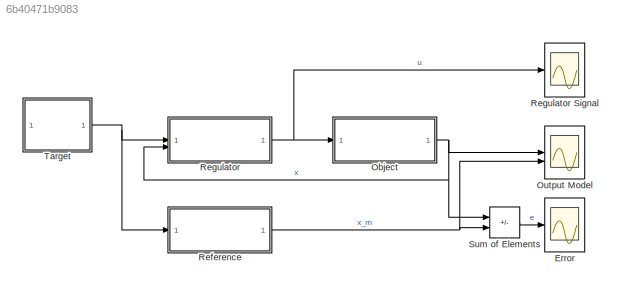
MODEL slx_6b40471b9083
KIND model
CONFIG AbsTol = auto
CONFIG EnableMultiTasking = off
CONFIG FixedStep = 1e-3
CONFIG MaxStep = auto
CONFIG MinStep = auto
CONFIG RelTol = 1e-3
CONFIG SampleTimeConstraint = Unconstrained
CONFIG SolverName = FixedStepAuto
CONFIG StartTime = 0.0
CONFIG StopTime = 10
BLOCK [Scope] Error
  Floating = off
  NumInputPorts = 1
  ScopeSpecificationString = Simulink.scopes.TimeScopeBlockCfg('CurrentConfiguration', extmgr.ConfigurationSet(extmgr.Configuration('Core','General UI',true,'FigureColor',[1 1 1]),extmgr.Configuration('Core','Source UI',true),extmgr.Configuration('Sources','WiredSimulink',true,'DataLoggingVariableName','ScopeData2'),extmgr.Configuration('Visuals','Time Domain',true,'SerializedDisplays',{struct('MinYLimReal','-3779449259807395...<+1764ch>
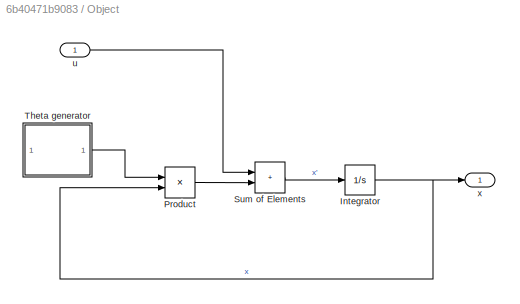
BLOCK [SubSystem] Object
BLOCK [Integrator] Object/Integrator
  InitialCondition = x_init
BLOCK [Product] Object/Product
BLOCK [Sum] Object/Sum of Elements
  IconShape = rectangular
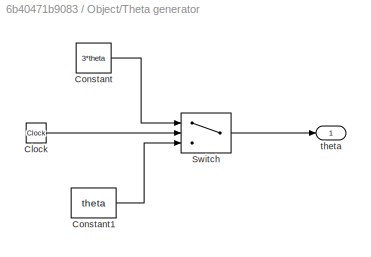
BLOCK [SubSystem] Object/Theta generator
BLOCK [Clock] Object/Theta generator/Clock
BLOCK [Constant] Object/Theta generator/Constant
  Value = 3*theta
BLOCK [Constant] Object/Theta generator/Constant1
  Value = theta
BLOCK [Switch] Object/Theta generator/Switch
  Criteria = u2 > Threshold
  InputSameDT = off
  SaturateOnIntegerOverflow = off
  Threshold = 5
BLOCK [Outport] Object/Theta generator/theta
BLOCK [Inport] Object/u
BLOCK [Outport] Object/x
BLOCK [Scope] Output Model
  Floating = off
  NumInputPorts = 2
  ScopeSpecificationString = Simulink.scopes.TimeScopeBlockCfg('CurrentConfiguration', extmgr.ConfigurationSet(extmgr.Configuration('Core','General UI',true,'FigureColor',[1 1 1]),extmgr.Configuration('Core','Source UI',true),extmgr.Configuration('Sources','WiredSimulink',true),extmgr.Configuration('Visuals','Time Domain',true,'SerializedDisplays',{struct('MinYLimReal','-377944925980739584.00000','MaxYLimReal','34015043338266...<+1802ch>
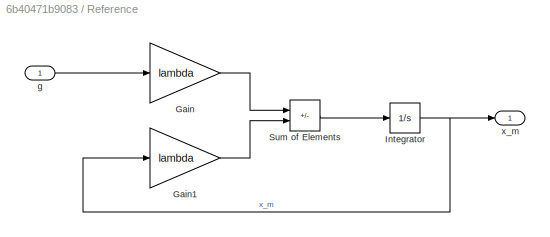
BLOCK [SubSystem] Reference
BLOCK [Gain] Reference/Gain
  Gain = lambda
  Multiplication = Matrix(K*u)
BLOCK [Gain] Reference/Gain1
  Gain = lambda
  Multiplication = Matrix(K*u)
BLOCK [Integrator] Reference/Integrator
  InitialCondition = x_m_init
BLOCK [Sum] Reference/Sum of Elements
  IconShape = rectangular
  Inputs = +-
BLOCK [Inport] Reference/g
BLOCK [Outport] Reference/x_m
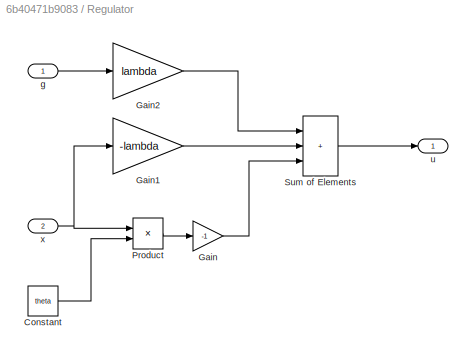
BLOCK [SubSystem] Regulator
BLOCK [Scope] Regulator Signal
  Floating = off
  NumInputPorts = 1
  ScopeSpecificationString = Simulink.scopes.TimeScopeBlockCfg('CurrentConfiguration', extmgr.ConfigurationSet(extmgr.Configuration('Core','General UI',true,'FigureColor',[1 1 1]),extmgr.Configuration('Core','Source UI',true),extmgr.Configuration('Sources','WiredSimulink',true,'DataLoggingVariableName','ScopeData1'),extmgr.Configuration('Visuals','Time Domain',true,'SerializedDisplays',{struct('MinYLimReal','-3401504333826657...<+1774ch>
BLOCK [Constant] Regulator/Constant
  Value = theta
BLOCK [Gain] Regulator/Gain
  Gain = -1
BLOCK [Gain] Regulator/Gain1
  Gain = -lambda
  Multiplication = Matrix(K*u)
BLOCK [Gain] Regulator/Gain2
  Gain = lambda
  Multiplication = Matrix(K*u)
BLOCK [Product] Regulator/Product
BLOCK [Sum] Regulator/Sum of Elements
  IconShape = rectangular
  Inputs = +++
BLOCK [Inport] Regulator/g
BLOCK [Outport] Regulator/u
BLOCK [Inport] Regulator/x
  Port = 2
BLOCK [Sum] Sum of Elements
  IconShape = rectangular
  Inputs = +-
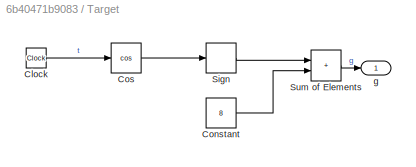
BLOCK [SubSystem] Target
BLOCK [Clock] Target/Clock
BLOCK [Constant] Target/Constant
  Value = 8
BLOCK [Trigonometry] Target/Cos
  Operator = cos
BLOCK [Signum] Target/Sign
BLOCK [Sum] Target/Sum of Elements
  IconShape = rectangular
BLOCK [Outport] Target/g
NET Object/Integrator:1 -> Object/Product:2, Object/x:1
LINE Object/Product:1 -> Object/Sum of Elements:2
LINE Object/Sum of Elements:1 -> Object/Integrator:1
LINE Object/Theta generator/Clock:1 -> Object/Theta generator/Switch:2
LINE Object/Theta generator/Constant1:1 -> Object/Theta generator/Switch:3
LINE Object/Theta generator/Constant:1 -> Object/Theta generator/Switch:1
LINE Object/Theta generator/Switch:1 -> Object/Theta generator/theta:1
LINE Object/Theta generator:1 -> Object/Product:1
LINE Object/u:1 -> Object/Sum of Elements:1
NET Object:1 -> Output Model:1, Regulator:2, Sum of Elements:1
LINE Reference/Gain1:1 -> Reference/Sum of Elements:2
LINE Reference/Gain:1 -> Reference/Sum of Elements:1
NET Reference/Integrator:1 -> Reference/Gain1:1, Reference/x_m:1
LINE Reference/Sum of Elements:1 -> Reference/Integrator:1
LINE Reference/g:1 -> Reference/Gain:1
NET Reference:1 -> Output Model:2, Sum of Elements:2
LINE Regulator/Constant:1 -> Regulator/Product:2
LINE Regulator/Gain1:1 -> Regulator/Sum of Elements:2
LINE Regulator/Gain2:1 -> Regulator/Sum of Elements:1
LINE Regulator/Gain:1 -> Regulator/Sum of Elements:3
LINE Regulator/Product:1 -> Regulator/Gain:1
LINE Regulator/Sum of Elements:1 -> Regulator/u:1
LINE Regulator/g:1 -> Regulator/Gain2:1
NET Regulator/x:1 -> Regulator/Gain1:1, Regulator/Product:1
NET Regulator:1 -> Object:1, Regulator Signal:1
LINE Sum of Elements:1 -> Error:1
LINE Target/Clock:1 -> Target/Cos:1
LINE Target/Constant:1 -> Target/Sum of Elements:2
LINE Target/Cos:1 -> Target/Sign:1
LINE Target/Sign:1 -> Target/Sum of Elements:1
LINE Target/Sum of Elements:1 -> Target/g:1
NET Target:1 -> Reference:1, Regulator:1
note: NET lines group one-source signal fan-out (src -> all destinations, sorted); 1:1 wires keep LINE
